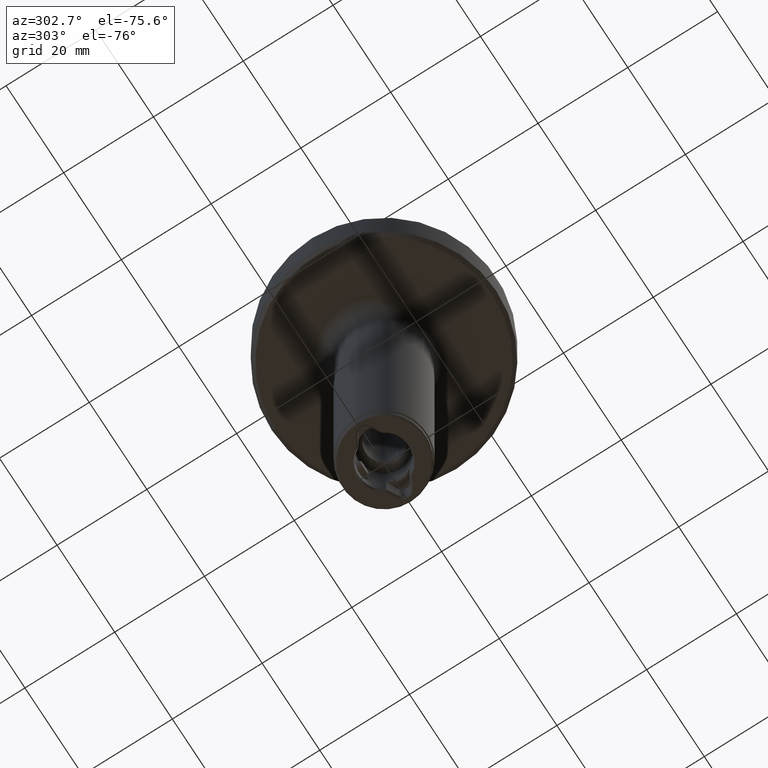
[diagram: clean part render]
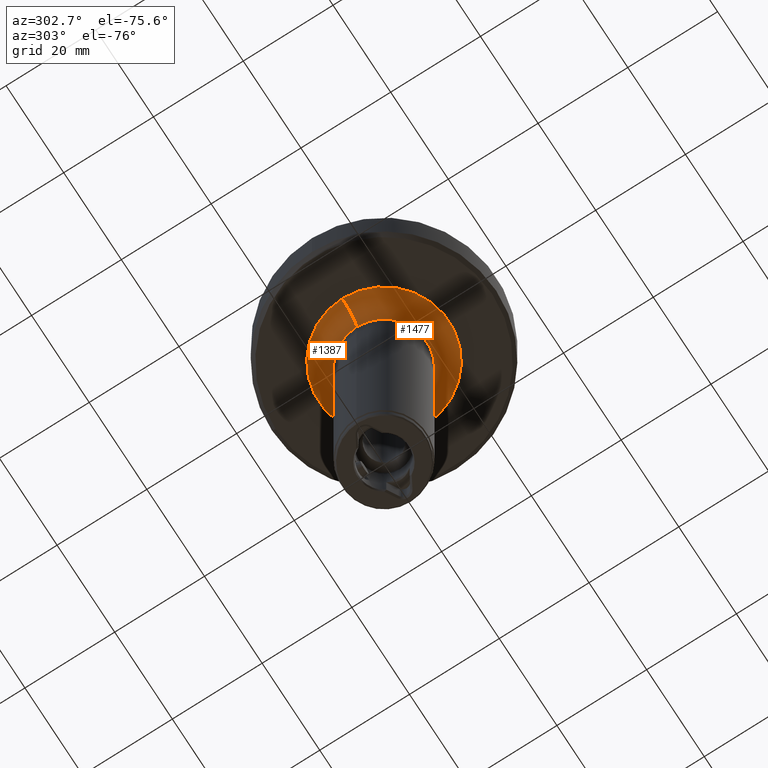
[diagram: same view with one multi-face feature highlighted, each face labeled with its STEP entity id]
A machine part, auxiliary view. The highlighted faces form ONE feature: a constant-radius fillet chain: 2 tangent blend faces with common blend radius 5 mm. The faces share edges in the B-rep.
Their STEP definitions:
[1] entity #1477 (Torus):
#551=VERTEX_POINT('NONE',#1577);
#803=VERTEX_POINT('NONE',#1853);
#1093=EDGE_CURVE('NONE',#1233,#803,#2181,.T.);
#1203=EDGE_CURVE('NONE',#1233,#551,#2302,.T.);
#1233=VERTEX_POINT('NONE',#2336);
#1247=VERTEX_POINT('NONE',#2352);
#1325=EDGE_CURVE('NONE',#1247,#803,#2436,.T.);
#1419=EDGE_CURVE('NONE',#551,#1247,#2545,.T.);
#1477=ADVANCED_FACE('NONE',(#2613),#2614,.F.);
#1577=CARTESIAN_POINT('',(14.5,0.0,-11.9));
#1853=CARTESIAN_POINT('',(-9.5,1.16337603613126E-015,-16.9));
#2181=CIRCLE('',#3718,5.0);
#2302=CIRCLE('',#3893,14.5);
#2336=CARTESIAN_POINT('',(-14.5,1.77567921304245E-015,-11.9));
#2352=CARTESIAN_POINT('',(9.5,0.0,-16.9));
#2436=CIRCLE('',#4111,9.5);
#2545=CIRCLE('',#4245,5.0);
#2613=FACE_OUTER_BOUND('',#4344,.T.);
#2614=TOROIDAL_SURFACE('',#4345,14.5,5.0);
#3718=AXIS2_PLACEMENT_3D('',#5250,#5251,#5252);
#3893=AXIS2_PLACEMENT_3D('',#5406,#5407,#5408);
#4111=AXIS2_PLACEMENT_3D('',#5571,#5572,#5573);
#4245=AXIS2_PLACEMENT_3D('',#5719,#5720,#5721);
#4344=EDGE_LOOP('',(#5814,#5815,#5816,#5817));
#4345=AXIS2_PLACEMENT_3D('',#5818,#5819,#5820);
#5250=CARTESIAN_POINT('',(-14.5,1.77567921304245E-015,-16.9));
#5251=DIRECTION('',(1.22460635382238E-016,1.0,0.0));
#5252=DIRECTION('',(1.0,-1.22460635382238E-016,-0.0));
#5406=CARTESIAN_POINT('',(0.0,0.0,-11.9));
#5407=DIRECTION('',(0.0,0.0,1.0));
#5408=DIRECTION('',(1.0,0.0,0.0));
#5571=CARTESIAN_POINT('',(0.0,0.0,-16.9));
#5572=DIRECTION('',(0.0,0.0,-1.0));
#5573=DIRECTION('',(1.0,0.0,0.0));
#5719=CARTESIAN_POINT('',(14.5,0.0,-16.9));
#5720=DIRECTION('',(0.0,-1.0,0.0));
#5721=DIRECTION('',(-1.0,0.0,0.0));
#5814=ORIENTED_EDGE('',*,*,#1203,.F.);
#5815=ORIENTED_EDGE('',*,*,#1093,.T.);
#5816=ORIENTED_EDGE('',*,*,#1325,.F.);
#5817=ORIENTED_EDGE('',*,*,#1419,.F.);
#5818=CARTESIAN_POINT('',(0.0,0.0,-16.9));
#5819=DIRECTION('',(0.0,0.0,1.0));
#5820=DIRECTION('',(1.0,0.0,0.0));
[2] entity #1387 (Torus):
#551=VERTEX_POINT('NONE',#1577);
#803=VERTEX_POINT('NONE',#1853);
#1035=EDGE_CURVE('NONE',#803,#1247,#2115,.T.);
#1093=EDGE_CURVE('NONE',#1233,#803,#2181,.T.);
#1233=VERTEX_POINT('NONE',#2336);
#1247=VERTEX_POINT('NONE',#2352);
#1387=ADVANCED_FACE('NONE',(#2506),#2507,.F.);
#1419=EDGE_CURVE('NONE',#551,#1247,#2545,.T.);
#1435=EDGE_CURVE('NONE',#551,#1233,#2566,.T.);
#1577=CARTESIAN_POINT('',(14.5,0.0,-11.9));
#1853=CARTESIAN_POINT('',(-9.5,1.16337603613126E-015,-16.9));
#2115=CIRCLE('',#3621,9.5);
#2181=CIRCLE('',#3718,5.0);
#2336=CARTESIAN_POINT('',(-14.5,1.77567921304245E-015,-11.9));
#2352=CARTESIAN_POINT('',(9.5,0.0,-16.9));
#2506=FACE_OUTER_BOUND('',#4198,.T.);
#2507=TOROIDAL_SURFACE('',#4199,14.5,5.0);
#2545=CIRCLE('',#4245,5.0);
#2566=CIRCLE('',#4269,14.5);
#3621=AXIS2_PLACEMENT_3D('',#5158,#5159,#5160);
#3718=AXIS2_PLACEMENT_3D('',#5250,#5251,#5252);
#4198=EDGE_LOOP('',(#5658,#5659,#5660,#5661));
#4199=AXIS2_PLACEMENT_3D('',#5662,#5663,#5664);
#4245=AXIS2_PLACEMENT_3D('',#5719,#5720,#5721);
#4269=AXIS2_PLACEMENT_3D('',#5753,#5754,#5755);
#5158=CARTESIAN_POINT('',(0.0,0.0,-16.9));
#5159=DIRECTION('',(0.0,0.0,-1.0));
#5160=DIRECTION('',(1.0,0.0,0.0));
#5250=CARTESIAN_POINT('',(-14.5,1.77567921304245E-015,-16.9));
#5251=DIRECTION('',(1.22460635382238E-016,1.0,0.0));
#5252=DIRECTION('',(1.0,-1.22460635382238E-016,-0.0));
#5658=ORIENTED_EDGE('',*,*,#1093,.F.);
#5659=ORIENTED_EDGE('',*,*,#1435,.F.);
#5660=ORIENTED_EDGE('',*,*,#1419,.T.);
#5661=ORIENTED_EDGE('',*,*,#1035,.F.);
#5662=CARTESIAN_POINT('',(0.0,0.0,-16.9));
#5663=DIRECTION('',(0.0,0.0,1.0));
#5664=DIRECTION('',(1.0,0.0,0.0));
#5719=CARTESIAN_POINT('',(14.5,0.0,-16.9));
#5720=DIRECTION('',(0.0,-1.0,0.0));
#5721=DIRECTION('',(-1.0,0.0,0.0));
#5753=CARTESIAN_POINT('',(0.0,0.0,-11.9));
#5754=DIRECTION('',(0.0,0.0,1.0));
#5755=DIRECTION('',(1.0,0.0,0.0));